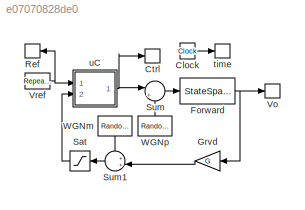
MODEL slx_e07070828de0
KIND model
CONFIG AbsTol = auto
CONFIG FixedStep = t_step
CONFIG MaxStep = auto
CONFIG MinStep = auto
CONFIG RelTol = 1e-3
CONFIG SampleTimeConstraint = Unconstrained
CONFIG Solver = ode3
CONFIG SolverMode = Auto
CONFIG SolverName = ode3
CONFIG StartTime = 0
CONFIG StopTime = tf
BLOCK [Clock] Clock
BLOCK [ToWorkspace] Ctrl
  FixptAsFi = on
  MaxDataPoints = inf
  Ports = [1]
  SampleTime = -1
  Save2DSignal = 3-D array (concatenate along third dimension)
  VariableName = d
BLOCK [StateSpace] Forward
  A = A
  B = B
  C = C
  D = D
  Ports = [1, 1]
  X0 = [0;0]
BLOCK [Gain] Grvd
  Gain = G
  OutDataTypeStr = Inherit: Inherit via internal rule
  ParamDataTypeStr = Inherit: Inherit via internal rule
  SaturateOnIntegerOverflow = off
BLOCK [ToWorkspace] Ref
  FixptAsFi = on
  MaxDataPoints = inf
  Ports = [1]
  SampleTime = -1
  Save2DSignal = 3-D array (concatenate along third dimension)
  VariableName = r
BLOCK [Saturate] Sat
  InputPortMap = u0
  LowerLimit = Sat_min
  Ports = [1, 1]
  UpperLimit = Sat_max
BLOCK [Sum] Sum
  IconShape = round
  InputSameDT = off
  Inputs = |++
  OutDataTypeStr = Inherit: Inherit via internal rule
  Ports = [2, 1]
  SaturateOnIntegerOverflow = off
BLOCK [Sum] Sum1
  IconShape = round
  InputSameDT = off
  Inputs = ++|
  OutDataTypeStr = Inherit: Inherit via internal rule
  Ports = [2, 1]
  SaturateOnIntegerOverflow = off
BLOCK [ToWorkspace] Vo
  FixptAsFi = on
  MaxDataPoints = inf
  Ports = [1]
  SampleTime = -1
  Save2DSignal = 3-D array (concatenate along third dimension)
  VariableName = vo
BLOCK [Reference] Vref  REF=simulink/Sources/Repeating
Sequence
  Ports = [0, 1]
  SourceBlock = simulink/Sources/Repeating\nSequence
  SourceType = Repeating table
  rep_seq_t = [0, 0.02, 0.021, 0.04, 0.041, 0.06, 0.061]
  rep_seq_y = [25, 25, 5, 5, 15, 15, 15]
BLOCK [RandomNumber] WGNm
  SampleTime = t_step
  Seed = 2
  Variance = var_v
BLOCK [RandomNumber] WGNp
  SampleTime = t_step
  Variance = var_xd
BLOCK [ToWorkspace] time
  FixptAsFi = on
  MaxDataPoints = inf
  Ports = [1]
  SampleTime = -1
  Save2DSignal = 3-D array (concatenate along third dimension)
  VariableName = t
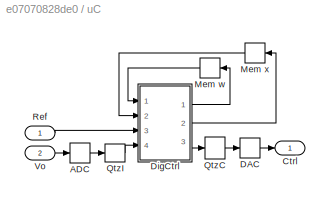
BLOCK [SubSystem] uC
  Ports = [2, 1]
  RequestExecContextInheritance = off
BLOCK [ZeroOrderHold] uC/ADC
  SampleTime = Ts
BLOCK [Outport] uC/Ctrl
  IconDisplay = Port number
BLOCK [ZeroOrderHold] uC/DAC
  SampleTime = Ts
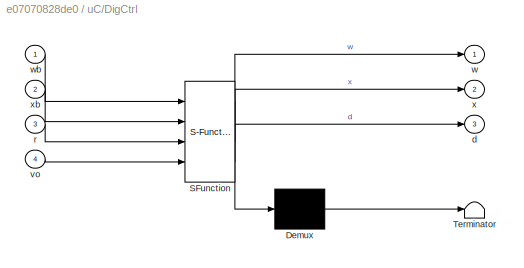
BLOCK [SubSystem] uC/DigCtrl
  ErrorFcn = Stateflow.Translate.translate
  PermitHierarchicalResolution = ExplicitOnly
  Ports = [4, 3]
  RequestExecContextInheritance = off
  SFBlockType = MATLAB Function
  TreatAsAtomicUnit = on
BLOCK [Demux] uC/DigCtrl/ Demux 
  Outputs = 1
  Ports = [1, 1]
BLOCK [S-Function] uC/DigCtrl/ SFunction 
  EnableBusSupport = on
  FunctionName = sf_sfun
  Parameters = Ad,Bd,Cd,Dmax,K,Le
  PortCounts = [4 4]
  Ports = [4, 4]
  Tag = Stateflow S-Function Control_Simulink 2
BLOCK [Terminator] uC/DigCtrl/ Terminator 
BLOCK [Outport] uC/DigCtrl/d
  IconDisplay = Port number
  Port = 3
BLOCK [Inport] uC/DigCtrl/r
  IconDisplay = Port number
  Port = 3
BLOCK [Inport] uC/DigCtrl/vo
  IconDisplay = Port number
  Port = 4
BLOCK [Outport] uC/DigCtrl/w
  IconDisplay = Port number
BLOCK [Inport] uC/DigCtrl/wb
  IconDisplay = Port number
BLOCK [Outport] uC/DigCtrl/x
  IconDisplay = Port number
  Port = 2
BLOCK [Inport] uC/DigCtrl/xb
  IconDisplay = Port number
  Port = 2
BLOCK [Delay] uC/Mem w
  DelayLength = 1
  InitialCondition = 0
  InputPortMap = u0
  Ports = [1, 1]
  SampleTime = Ts
BLOCK [Delay] uC/Mem x
  DelayLength = 1
  InitialCondition = [0;0]
  InputPortMap = u0
  Ports = [1, 1]
  SampleTime = Ts
BLOCK [Quantizer] uC/QtzC
  LinearizeAsGain = off
  QuantizationInterval = qtz_ctr
BLOCK [Quantizer] uC/QtzI
  LinearizeAsGain = off
  QuantizationInterval = qtz_in
BLOCK [Inport] uC/Ref
  IconDisplay = Port number
BLOCK [Inport] uC/Vo
  IconDisplay = Port number
  Port = 2
LINE Clock:1 -> time:1
NET Forward:1 -> Grvd:1, Vo:1
LINE Grvd:1 -> Sum1:2
LINE Sat:1 -> uC:2
LINE Sum1:1 -> Sat:1
LINE Sum:1 -> Forward:1
NET Vref:1 -> Ref:1, uC:1
LINE WGNm:1 -> Sum1:1
LINE WGNp:1 -> Sum:2
LINE uC/ADC:1 -> uC/QtzI:1
LINE uC/DAC:1 -> uC/Ctrl:1
LINE uC/DigCtrl:1 -> uC/Mem w:1
LINE uC/DigCtrl:2 -> uC/Mem x:1
LINE uC/DigCtrl:3 -> uC/QtzC:1
LINE uC/Mem w:1 -> uC/DigCtrl:1
LINE uC/Mem x:1 -> uC/DigCtrl:2
LINE uC/QtzC:1 -> uC/DAC:1
LINE uC/QtzI:1 -> uC/DigCtrl:4
LINE uC/Ref:1 -> uC/DigCtrl:3
LINE uC/Vo:1 -> uC/ADC:1
NET uC:1 -> Ctrl:1, Sum:1
note: NET lines group one-source signal fan-out (src -> all destinations, sorted); 1:1 wires keep LINE
CHART uC/DigCtrl states=1 transitions=1
  STATE_LABEL 'eML_blk_kernel()'
  STATE_LABEL 'SCRIPT:\nfunction [w, x, d] = fcn(wb, xb, r, vo, Ad, ...\n    Bd, K, Le, Cd, Dmax)\n% Plant output value correction\ny = 6 * vo;\n% Integral action\nw = wb + y - r;\n% Current Estimator - State update\nx_LQG = xb + Le * (y - Cd*xb);\n% Control effort\nd = - K * [x_LQG; w];\n% PWM saturation\nif d > Dmax\n    d = Dmax;\nelseif d < 0\n    d = 0;\nend\n% Current Estimator - State extrapolation\nx = Ad*x_LQG + Bd*d;'
